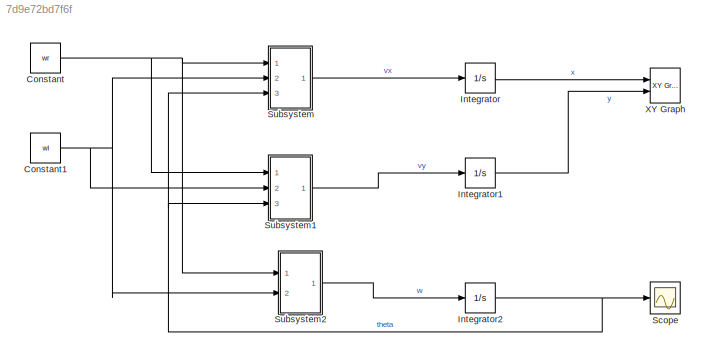
MODEL slx_7d9e72bd7f6f
KIND model
CONFIG AbsTol = auto
CONFIG EnableMultiTasking = off
CONFIG FixedStep = auto
CONFIG MaxStep = auto
CONFIG MinStep = auto
CONFIG RelTol = 1e-3
CONFIG SampleTimeConstraint = Unconstrained
CONFIG Solver = VariableStepAuto
CONFIG SolverName = VariableStepAuto
CONFIG StartTime = 0.0
CONFIG StopTime = 10.0
BLOCK [Constant] Constant
  Value = wr
BLOCK [Constant] Constant1
  Value = wl
BLOCK [Integrator] Integrator
  Ports = [1, 1]
BLOCK [Integrator] Integrator1
  Ports = [1, 1]
BLOCK [Integrator] Integrator2
  Ports = [1, 1]
BLOCK [Scope] Scope
  NumInputPorts = 1
  Ports = [1]
  ScopeSpecificationString = Simulink.scopes.TimeScopeBlockCfg('CurrentConfiguration', extmgr.ConfigurationSet(extmgr.Configuration('Core','General UI',true),extmgr.Configuration('Core','Source UI',true),extmgr.Configuration('Sources','WiredSimulink',true),extmgr.Configuration('Visuals','Time Domain',true,'SerializedDisplays',{struct('MinYLimReal','-3.75','MaxYLimReal','33.75','YLabelReal','','MinYLimMag','0.00000','MaxYLimMa...<+1311ch>
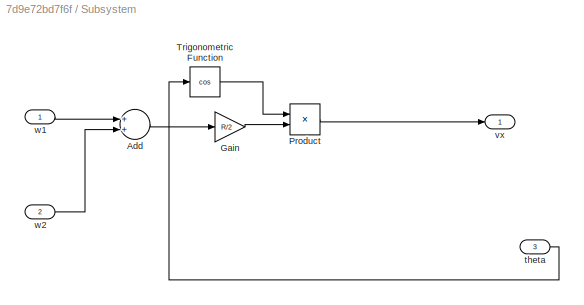
BLOCK [SubSystem] Subsystem
  Ports = [3, 1]
  RequestExecContextInheritance = off
  Variant = off
BLOCK [Sum] Subsystem/Add
  InputSameDT = off
  OutDataTypeStr = Inherit: Inherit via internal rule
  Ports = [2, 1]
  SaturateOnIntegerOverflow = off
BLOCK [Gain] Subsystem/Gain
  Gain = R/2
  OutDataTypeStr = Inherit: Inherit via internal rule
  ParamDataTypeStr = Inherit: Inherit via internal rule
  SaturateOnIntegerOverflow = off
BLOCK [Product] Subsystem/Product
  InputSameDT = off
  OutDataTypeStr = Inherit: Inherit via internal rule
  Ports = [2, 1]
  RndMeth = Floor
  SaturateOnIntegerOverflow = off
BLOCK [Trigonometry] Subsystem/Trigonometric Function
  Operator = cos
  Ports = [1, 1]
BLOCK [Inport] Subsystem/theta
  IconDisplay = Port number
  Port = 3
BLOCK [Outport] Subsystem/vx
  IconDisplay = Port number
BLOCK [Inport] Subsystem/w1
  IconDisplay = Port number
BLOCK [Inport] Subsystem/w2
  IconDisplay = Port number
  Port = 2
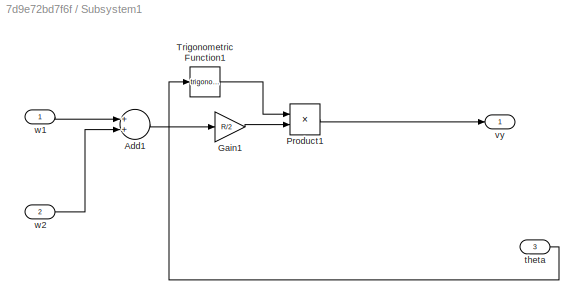
BLOCK [SubSystem] Subsystem1
  Ports = [3, 1]
  RequestExecContextInheritance = off
  Variant = off
BLOCK [Sum] Subsystem1/Add1
  InputSameDT = off
  OutDataTypeStr = Inherit: Inherit via internal rule
  Ports = [2, 1]
  SaturateOnIntegerOverflow = off
BLOCK [Gain] Subsystem1/Gain1
  Gain = R/2
  OutDataTypeStr = Inherit: Inherit via internal rule
  ParamDataTypeStr = Inherit: Inherit via internal rule
  SaturateOnIntegerOverflow = off
BLOCK [Product] Subsystem1/Product1
  InputSameDT = off
  OutDataTypeStr = Inherit: Inherit via internal rule
  Ports = [2, 1]
  RndMeth = Floor
  SaturateOnIntegerOverflow = off
BLOCK [Trigonometry] Subsystem1/Trigonometric Function1
  Ports = [1, 1]
BLOCK [Inport] Subsystem1/theta
  IconDisplay = Port number
  Port = 3
BLOCK [Outport] Subsystem1/vy
  IconDisplay = Port number
BLOCK [Inport] Subsystem1/w1
  IconDisplay = Port number
BLOCK [Inport] Subsystem1/w2
  IconDisplay = Port number
  Port = 2
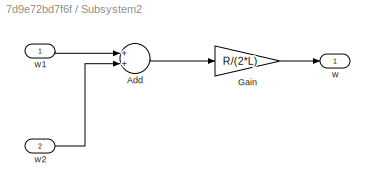
BLOCK [SubSystem] Subsystem2
  Ports = [2, 1]
  RequestExecContextInheritance = off
  Variant = off
BLOCK [Sum] Subsystem2/Add
  InputSameDT = off
  OutDataTypeStr = Inherit: Inherit via internal rule
  Ports = [2, 1]
  SaturateOnIntegerOverflow = off
BLOCK [Gain] Subsystem2/Gain
  Gain = R/(2*L)
  OutDataTypeStr = Inherit: Inherit via internal rule
  ParamDataTypeStr = Inherit: Inherit via internal rule
  SaturateOnIntegerOverflow = off
BLOCK [Outport] Subsystem2/w
  IconDisplay = Port number
BLOCK [Inport] Subsystem2/w1
  IconDisplay = Port number
BLOCK [Inport] Subsystem2/w2
  IconDisplay = Port number
  Port = 2
BLOCK [Reference] XY Graph  REF=simulink/Sinks/XY Graph
  Ports = [2]
  SourceBlock = simulink/Sinks/XY Graph
  SourceProductBaseCode = SL
  SourceProductName = Simulink
  SourceType = XY scope.
NET Constant1:1 -> Subsystem1:2, Subsystem2:2, Subsystem:2
NET Constant:1 -> Subsystem1:1, Subsystem2:1, Subsystem:1
LINE Integrator1:1 -> XY Graph:2
NET Integrator2:1 -> Scope:1, Subsystem1:3, Subsystem:3
LINE Integrator:1 -> XY Graph:1
LINE Subsystem/Add:1 -> Subsystem/Gain:1
LINE Subsystem/Gain:1 -> Subsystem/Product:2
LINE Subsystem/Product:1 -> Subsystem/vx:1
LINE Subsystem/Trigonometric Function:1 -> Subsystem/Product:1
LINE Subsystem/theta:1 -> Subsystem/Trigonometric Function:1
LINE Subsystem/w1:1 -> Subsystem/Add:1
LINE Subsystem/w2:1 -> Subsystem/Add:2
LINE Subsystem1/Add1:1 -> Subsystem1/Gain1:1
LINE Subsystem1/Gain1:1 -> Subsystem1/Product1:2
LINE Subsystem1/Product1:1 -> Subsystem1/vy:1
LINE Subsystem1/Trigonometric Function1:1 -> Subsystem1/Product1:1
LINE Subsystem1/theta:1 -> Subsystem1/Trigonometric Function1:1
LINE Subsystem1/w1:1 -> Subsystem1/Add1:1
LINE Subsystem1/w2:1 -> Subsystem1/Add1:2
LINE Subsystem1:1 -> Integrator1:1
LINE Subsystem2/Add:1 -> Subsystem2/Gain:1
LINE Subsystem2/Gain:1 -> Subsystem2/w:1
LINE Subsystem2/w1:1 -> Subsystem2/Add:1
LINE Subsystem2/w2:1 -> Subsystem2/Add:2
LINE Subsystem2:1 -> Integrator2:1
LINE Subsystem:1 -> Integrator:1
note: NET lines group one-source signal fan-out (src -> all destinations, sorted); 1:1 wires keep LINE
